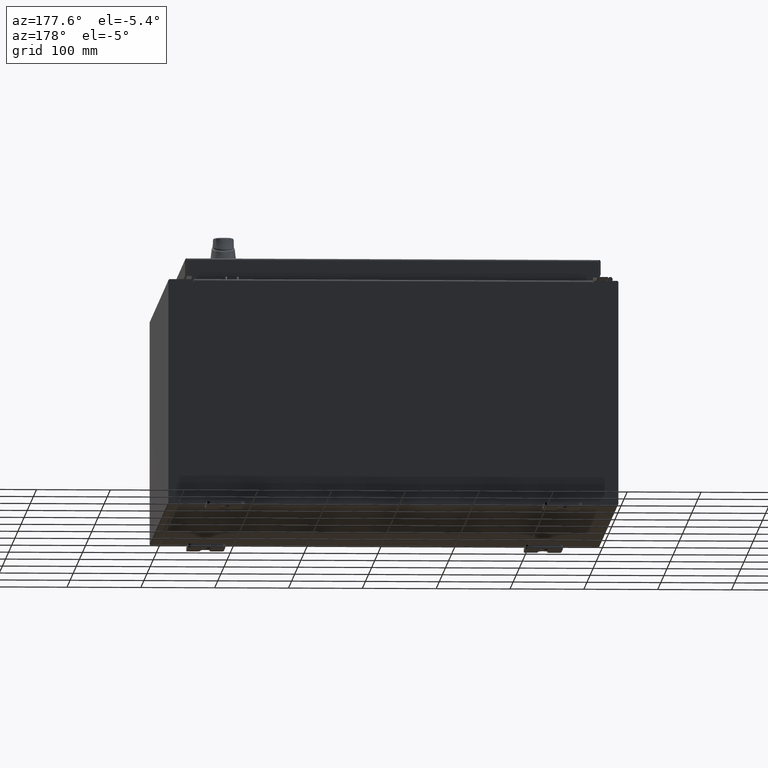
[diagram: clean part render]
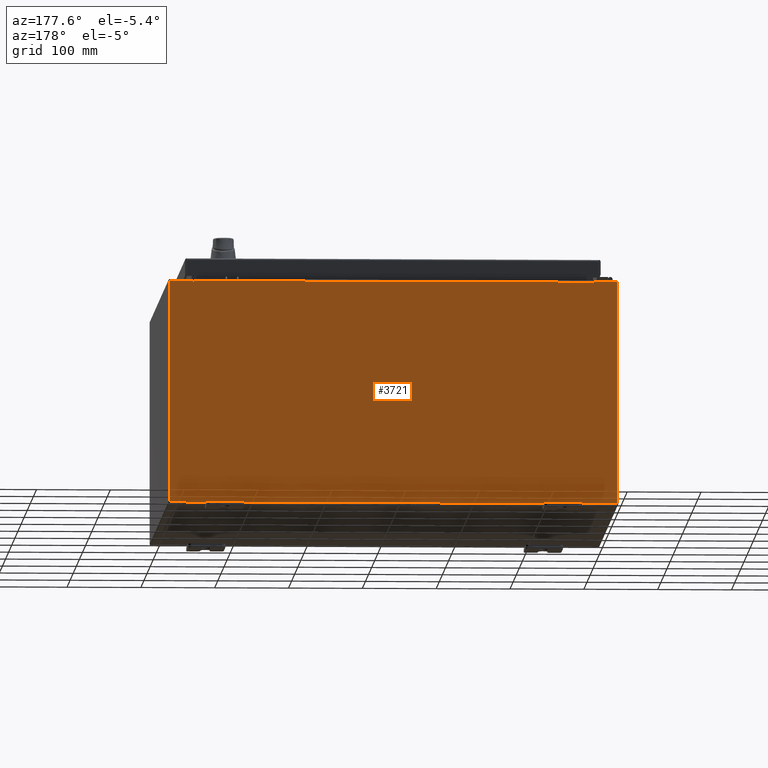
[diagram: same view with one face highlighted and labeled with its STEP entity id]
A machine part, auxiliary view. The second image highlights one B-rep face of the part: STEP entity #3721.
In plain terms, the highlighted planar face has unit normal (0, -1, 0).
Its self-contained STEP definition (entity closure, byte-faithful):
#695 = FACE_OUTER_BOUND ( 'NONE', #36391, .T. ) ;
#1476 = ORIENTED_EDGE ( 'NONE', *, *, #2963, .T. ) ;
#2963 = EDGE_CURVE ( 'NONE', #52117, #50967, #15847, .T. ) ;
#3721 = ADVANCED_FACE ( 'NONE', ( #695 ), #102623, .F. ) ;
#6530 = CARTESIAN_POINT ( 'NONE',  ( 0.0000000000000000000, 0.0000000000000000000, 0.0000000000000000000 ) ) ;
#9757 = ORIENTED_EDGE ( 'NONE', *, *, #87733, .T. ) ;
#10271 = EDGE_CURVE ( 'NONE', #50967, #28603, #60366, .T. ) ;
#10879 = EDGE_CURVE ( 'NONE', #43039, #42199, #47921, .T. ) ;
#11882 = DIRECTION ( 'NONE',  ( -0.0000000000000000000, 1.000000000000000000, -0.0000000000000000000 ) ) ;
#14947 = CARTESIAN_POINT ( 'NONE',  ( -10.67455000000000200, -0.0000000000000000000, 0.0000000000000000000 ) ) ;
#15225 = CARTESIAN_POINT ( 'NONE',  ( 11.92530000000000000, 0.0000000000000000000, -5.925299999999999100 ) ) ;
#15847 = LINE ( 'NONE', #16278, #59680 ) ;
#16278 = CARTESIAN_POINT ( 'NONE',  ( -11.92530000000000000, 0.0000000000000000000, 5.925300000000000000 ) ) ;
#18061 = VECTOR ( 'NONE', #93083, 39.37007874015748100 ) ;
#20590 = VECTOR ( 'NONE', #23803, 39.37007874015748100 ) ;
#20778 = CARTESIAN_POINT ( 'NONE',  ( 10.67455000000000200, 0.0000000000000000000, 5.925300000000001800 ) ) ;
#22624 = CARTESIAN_POINT ( 'NONE',  ( -10.63720000000000400, -0.0000000000000000000, 5.874950000000001000 ) ) ;
#23803 = DIRECTION ( 'NONE',  ( 0.0000000000000000000, 0.0000000000000000000, -1.000000000000000000 ) ) ;
#24051 = DIRECTION ( 'NONE',  ( 0.0000000000000000000, -1.000000000000000000, 0.0000000000000000000 ) ) ;
#25251 = VECTOR ( 'NONE', #57556, 39.37007874015748100 ) ;
#25914 = LINE ( 'NONE', #97766, #72476 ) ;
#28309 = ORIENTED_EDGE ( 'NONE', *, *, #71071, .F. ) ;
#28603 = VERTEX_POINT ( 'NONE', #67316 ) ;
#28607 = VERTEX_POINT ( 'NONE', #76476 ) ;
#30845 = ORIENTED_EDGE ( 'NONE', *, *, #45912, .F. ) ;
#31741 = DIRECTION ( 'NONE',  ( -0.0000000000000000000, 1.000000000000000000, -0.0000000000000000000 ) ) ;
#33359 = VERTEX_POINT ( 'NONE', #85444 ) ;
#35032 = VECTOR ( 'NONE', #36081, 39.37007874015748100 ) ;
#36081 = DIRECTION ( 'NONE',  ( 1.000000000000000000, 0.0000000000000000000, 0.0000000000000000000 ) ) ;
#36391 = EDGE_LOOP ( 'NONE', ( #28309, #71493, #70991, #52757, #58076, #30845, #53496, #57884, #9757, #45989, #1476, #63413 ) ) ;
#37808 = LINE ( 'NONE', #44907, #35032 ) ;
#38240 = CARTESIAN_POINT ( 'NONE',  ( -11.92530000000000000, 0.0000000000000000000, 5.925300000000000000 ) ) ;
#38973 = CARTESIAN_POINT ( 'NONE',  ( -10.63720000000000400, -0.0000000000000000000, 0.0000000000000000000 ) ) ;
#39295 = VERTEX_POINT ( 'NONE', #108352 ) ;
#41292 = VECTOR ( 'NONE', #108712, 39.37007874015748100 ) ;
#41386 = LINE ( 'NONE', #84239, #18061 ) ;
#42199 = VERTEX_POINT ( 'NONE', #22624 ) ;
#43039 = VERTEX_POINT ( 'NONE', #64590 ) ;
#44907 = CARTESIAN_POINT ( 'NONE',  ( -10.63720000000000400, -1.707404996040164500E-016, 5.912300000000001000 ) ) ;
#45269 = DIRECTION ( 'NONE',  ( 0.0000000000000000000, 0.0000000000000000000, 1.000000000000000000 ) ) ;
#45912 = EDGE_CURVE ( 'NONE', #28607, #51589, #78457, .T. ) ;
#45989 = ORIENTED_EDGE ( 'NONE', *, *, #78477, .T. ) ;
#46641 = LINE ( 'NONE', #85106, #20590 ) ;
#47659 = VERTEX_POINT ( 'NONE', #15225 ) ;
#47921 = LINE ( 'NONE', #38973, #71239 ) ;
#50967 = VERTEX_POINT ( 'NONE', #38240 ) ;
#51589 = VERTEX_POINT ( 'NONE', #82501 ) ;
#52117 = VERTEX_POINT ( 'NONE', #61960 ) ;
#52394 = CARTESIAN_POINT ( 'NONE',  ( 10.65587500000000200, 0.0000000000000000000, 5.874950000000001000 ) ) ;
#52757 = ORIENTED_EDGE ( 'NONE', *, *, #70282, .T. ) ;
#53496 = ORIENTED_EDGE ( 'NONE', *, *, #79343, .F. ) ;
#57556 = DIRECTION ( 'NONE',  ( 0.0000000000000000000, 0.0000000000000000000, -1.000000000000000000 ) ) ;
#57884 = ORIENTED_EDGE ( 'NONE', *, *, #105538, .T. ) ;
#58076 = ORIENTED_EDGE ( 'NONE', *, *, #61036, .F. ) ;
#59680 = VECTOR ( 'NONE', #59927, 39.37007874015748100 ) ;
#59927 = DIRECTION ( 'NONE',  ( -0.0000000000000000000, -0.0000000000000000000, 1.000000000000000000 ) ) ;
#60366 = LINE ( 'NONE', #83145, #78142 ) ;
#60561 = CIRCLE ( 'NONE', #61493, 0.01867499999999949400 ) ;
#61036 = EDGE_CURVE ( 'NONE', #51589, #39295, #25914, .T. ) ;
#61215 = DIRECTION ( 'NONE',  ( 0.0000000000000000000, 0.0000000000000000000, -1.000000000000000000 ) ) ;
#61493 = AXIS2_PLACEMENT_3D ( 'NONE', #84219, #31741, #93062 ) ;
#61960 = CARTESIAN_POINT ( 'NONE',  ( -11.92530000000000000, 0.0000000000000000000, -5.925299999999999100 ) ) ;
#63413 = ORIENTED_EDGE ( 'NONE', *, *, #10271, .T. ) ;
#64554 = LINE ( 'NONE', #90632, #41292 ) ;
#64590 = CARTESIAN_POINT ( 'NONE',  ( -10.63720000000000400, -1.707404996040164500E-016, 5.912300000000001000 ) ) ;
#65871 = CARTESIAN_POINT ( 'NONE',  ( 11.92530000000000000, 0.0000000000000000000, 5.925300000000001800 ) ) ;
#67316 = CARTESIAN_POINT ( 'NONE',  ( -10.67455000000000200, 0.0000000000000000000, 5.925300000000000000 ) ) ;
#68462 = AXIS2_PLACEMENT_3D ( 'NONE', #6530, #24051, #85337 ) ;
#68481 = AXIS2_PLACEMENT_3D ( 'NONE', #52394, #11882, #61215 ) ;
#70282 = EDGE_CURVE ( 'NONE', #43039, #39295, #37808, .T. ) ;
#70991 = ORIENTED_EDGE ( 'NONE', *, *, #10879, .F. ) ;
#71071 = EDGE_CURVE ( 'NONE', #33359, #28603, #110448, .T. ) ;
#71239 = VECTOR ( 'NONE', #83400, 39.37007874015748100 ) ;
#71493 = ORIENTED_EDGE ( 'NONE', *, *, #91170, .F. ) ;
#72476 = VECTOR ( 'NONE', #45269, 39.37007874015748100 ) ;
#76183 = DIRECTION ( 'NONE',  ( 0.0000000000000000000, 0.0000000000000000000, 1.000000000000000000 ) ) ;
#76476 = CARTESIAN_POINT ( 'NONE',  ( 10.67455000000000200, 0.0000000000000000000, 5.874950000000001000 ) ) ;
#78142 = VECTOR ( 'NONE', #100401, 39.37007874015748100 ) ;
#78457 = CIRCLE ( 'NONE', #68481, 0.01867499999999949400 ) ;
#78477 = EDGE_CURVE ( 'NONE', #47659, #52117, #64554, .T. ) ;
#79343 = EDGE_CURVE ( 'NONE', #79881, #28607, #46641, .T. ) ;
#79881 = VERTEX_POINT ( 'NONE', #20778 ) ;
#82501 = CARTESIAN_POINT ( 'NONE',  ( 10.63720000000000400, 0.0000000000000000000, 5.874950000000001000 ) ) ;
#83145 = CARTESIAN_POINT ( 'NONE',  ( -11.92530000000000000, 0.0000000000000000000, 5.925300000000000000 ) ) ;
#83400 = DIRECTION ( 'NONE',  ( 0.0000000000000000000, 0.0000000000000000000, -1.000000000000000000 ) ) ;
#84219 = CARTESIAN_POINT ( 'NONE',  ( -10.65587500000000200, 0.0000000000000000000, 5.874950000000001000 ) ) ;
#84239 = CARTESIAN_POINT ( 'NONE',  ( -11.92530000000000000, 0.0000000000000000000, 5.925300000000000000 ) ) ;
#85106 = CARTESIAN_POINT ( 'NONE',  ( 10.67455000000000200, 0.0000000000000000000, 0.0000000000000000000 ) ) ;
#85337 = DIRECTION ( 'NONE',  ( 0.0000000000000000000, -0.0000000000000000000, -1.000000000000000000 ) ) ;
#85444 = CARTESIAN_POINT ( 'NONE',  ( -10.67455000000000200, 0.0000000000000000000, 5.874950000000001000 ) ) ;
#85896 = VERTEX_POINT ( 'NONE', #65871 ) ;
#87733 = EDGE_CURVE ( 'NONE', #85896, #47659, #95166, .T. ) ;
#90632 = CARTESIAN_POINT ( 'NONE',  ( -11.92530000000000000, 0.0000000000000000000, -5.925299999999999100 ) ) ;
#91170 = EDGE_CURVE ( 'NONE', #42199, #33359, #60561, .T. ) ;
#93062 = DIRECTION ( 'NONE',  ( 0.0000000000000000000, 0.0000000000000000000, -1.000000000000000000 ) ) ;
#93083 = DIRECTION ( 'NONE',  ( 1.000000000000000000, 0.0000000000000000000, 4.581600452255731000E-017 ) ) ;
#95166 = LINE ( 'NONE', #101663, #25251 ) ;
#97766 = CARTESIAN_POINT ( 'NONE',  ( 10.63720000000000400, 0.0000000000000000000, 0.0000000000000000000 ) ) ;
#100401 = DIRECTION ( 'NONE',  ( 1.000000000000000000, 0.0000000000000000000, 4.581600452255731000E-017 ) ) ;
#101663 = CARTESIAN_POINT ( 'NONE',  ( 11.92530000000000000, 0.0000000000000000000, 5.925300000000001800 ) ) ;
#102623 = PLANE ( 'NONE',  #68462 ) ;
#105538 = EDGE_CURVE ( 'NONE', #79881, #85896, #41386, .T. ) ;
#108352 = CARTESIAN_POINT ( 'NONE',  ( 10.63720000000000400, 0.0000000000000000000, 5.912300000000001000 ) ) ;
#108712 = DIRECTION ( 'NONE',  ( -1.000000000000000000, -0.0000000000000000000, -0.0000000000000000000 ) ) ;
#110448 = LINE ( 'NONE', #14947, #113223 ) ;
#113223 = VECTOR ( 'NONE', #76183, 39.37007874015748100 ) ;